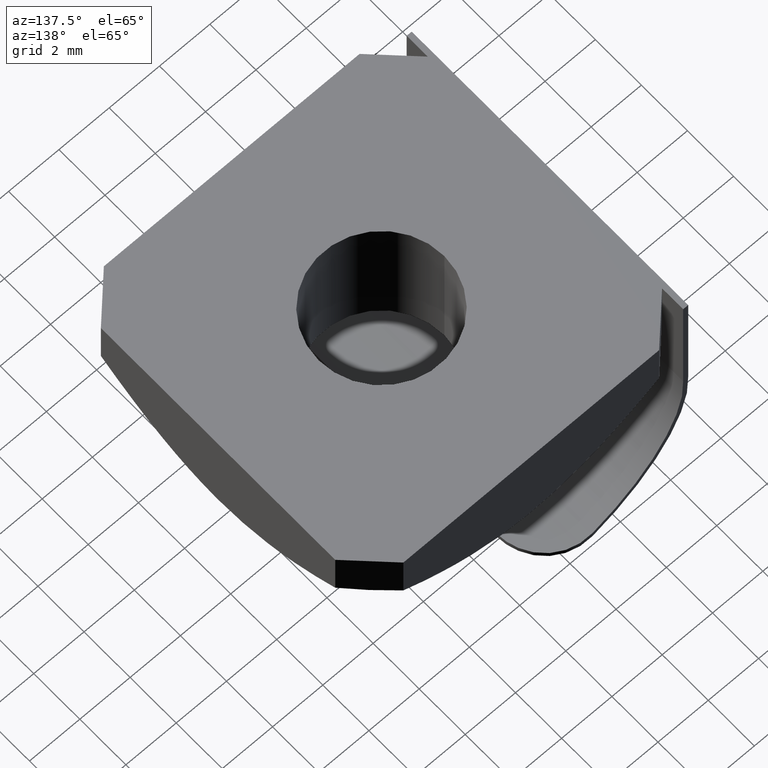
[diagram: clean part render]
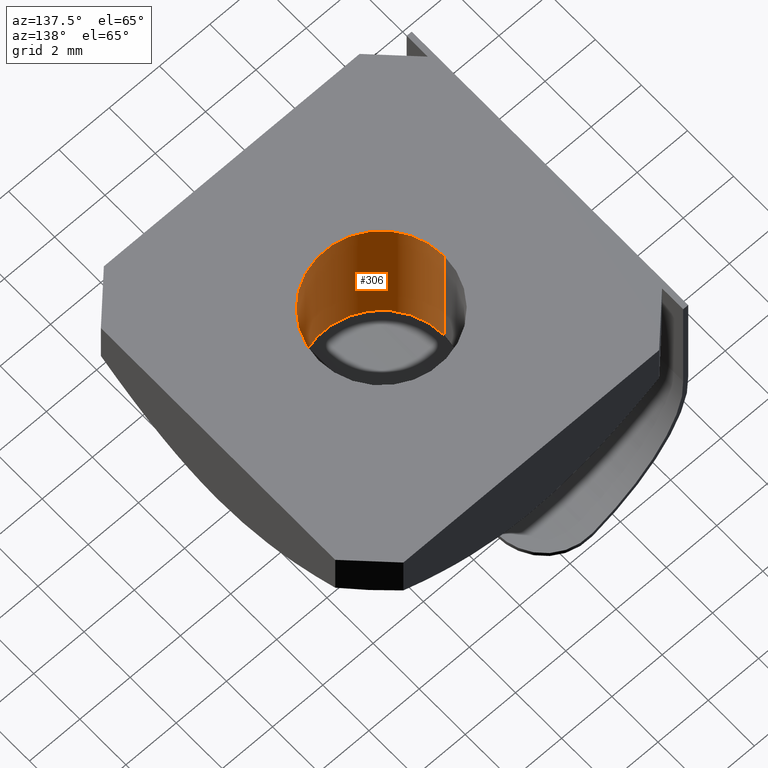
[diagram: same view with one face highlighted and labeled with its STEP entity id]
A machine part, auxiliary view. The second image highlights one B-rep face of the part: STEP entity #306.
In plain terms, the highlighted cylindrical surface (partial cylindrical patch) has radius 2.5 mm, axis along (0, 0, -1).
Its self-contained STEP definition (entity closure, byte-faithful):
#51 = ORIENTED_EDGE ( 'NONE', *, *, #479, .F. ) ;
#74 = VERTEX_POINT ( 'NONE', #396 ) ;
#121 = LINE ( 'NONE', #711, #762 ) ;
#131 = EDGE_CURVE ( 'NONE', #755, #517, #403, .T. ) ;
#140 = DIRECTION ( 'NONE',  ( -1.000000000000000000, 0.0000000000000000000, 0.0000000000000000000 ) ) ;
#166 = VECTOR ( 'NONE', #738, 1000.000000000000000 ) ;
#255 = ORIENTED_EDGE ( 'NONE', *, *, #555, .F. ) ;
#272 = CARTESIAN_POINT ( 'NONE',  ( -2.500000000000000000, 0.0000000000000000000, 0.0000000000000000000 ) ) ;
#306 = ADVANCED_FACE ( 'NONE', ( #717 ), #832, .F. ) ;
#308 = DIRECTION ( 'NONE',  ( 0.0000000000000000000, 0.0000000000000000000, -1.000000000000000000 ) ) ;
#377 = CIRCLE ( 'NONE', #793, 2.500000000000000000 ) ;
#396 = CARTESIAN_POINT ( 'NONE',  ( 2.500000000000000000, 3.061616997868383141E-16, 0.0000000000000000000 ) ) ;
#403 = CIRCLE ( 'NONE', #562, 2.500000000000000000 ) ;
#465 = DIRECTION ( 'NONE',  ( -1.000000000000000000, 0.0000000000000000000, 0.0000000000000000000 ) ) ;
#475 = CARTESIAN_POINT ( 'NONE',  ( 0.0000000000000000000, 0.0000000000000000000, -5.500000000000000000 ) ) ;
#477 = ORIENTED_EDGE ( 'NONE', *, *, #131, .F. ) ;
#479 = EDGE_CURVE ( 'NONE', #74, #720, #377, .T. ) ;
#512 = EDGE_CURVE ( 'NONE', #74, #517, #121, .T. ) ;
#517 = VERTEX_POINT ( 'NONE', #783 ) ;
#531 = DIRECTION ( 'NONE',  ( -0.0000000000000000000, -0.0000000000000000000, 1.000000000000000000 ) ) ;
#545 = ORIENTED_EDGE ( 'NONE', *, *, #512, .T. ) ;
#555 = EDGE_CURVE ( 'NONE', #720, #755, #830, .T. ) ;
#562 = AXIS2_PLACEMENT_3D ( 'NONE', #475, #531, #465 ) ;
#574 = AXIS2_PLACEMENT_3D ( 'NONE', #829, #611, #140 ) ;
#575 = DIRECTION ( 'NONE',  ( -1.000000000000000000, 0.0000000000000000000, 0.0000000000000000000 ) ) ;
#610 = CARTESIAN_POINT ( 'NONE',  ( -2.500000000000000000, 0.0000000000000000000, -5.500000000000000000 ) ) ;
#611 = DIRECTION ( 'NONE',  ( 0.0000000000000000000, 0.0000000000000000000, -1.000000000000000000 ) ) ;
#644 = DIRECTION ( 'NONE',  ( 0.0000000000000000000, 0.0000000000000000000, -1.000000000000000000 ) ) ;
#664 = EDGE_LOOP ( 'NONE', ( #51, #545, #477, #255 ) ) ;
#711 = CARTESIAN_POINT ( 'NONE',  ( 2.500000000000000000, 3.061616997868383141E-16, 0.0000000000000000000 ) ) ;
#717 = FACE_OUTER_BOUND ( 'NONE', #664, .T. ) ;
#720 = VERTEX_POINT ( 'NONE', #272 ) ;
#738 = DIRECTION ( 'NONE',  ( 0.0000000000000000000, 0.0000000000000000000, -1.000000000000000000 ) ) ;
#755 = VERTEX_POINT ( 'NONE', #610 ) ;
#762 = VECTOR ( 'NONE', #308, 1000.000000000000000 ) ;
#783 = CARTESIAN_POINT ( 'NONE',  ( 2.500000000000000000, 3.061616997868383141E-16, -5.500000000000000000 ) ) ;
#793 = AXIS2_PLACEMENT_3D ( 'NONE', #861, #644, #575 ) ;
#815 = CARTESIAN_POINT ( 'NONE',  ( -2.500000000000000000, 0.0000000000000000000, 0.0000000000000000000 ) ) ;
#829 = CARTESIAN_POINT ( 'NONE',  ( 0.0000000000000000000, 0.0000000000000000000, 0.0000000000000000000 ) ) ;
#830 = LINE ( 'NONE', #815, #166 ) ;
#832 = CYLINDRICAL_SURFACE ( 'NONE', #574, 2.500000000000000000 ) ;
#861 = CARTESIAN_POINT ( 'NONE',  ( 0.0000000000000000000, 0.0000000000000000000, 0.0000000000000000000 ) ) ;